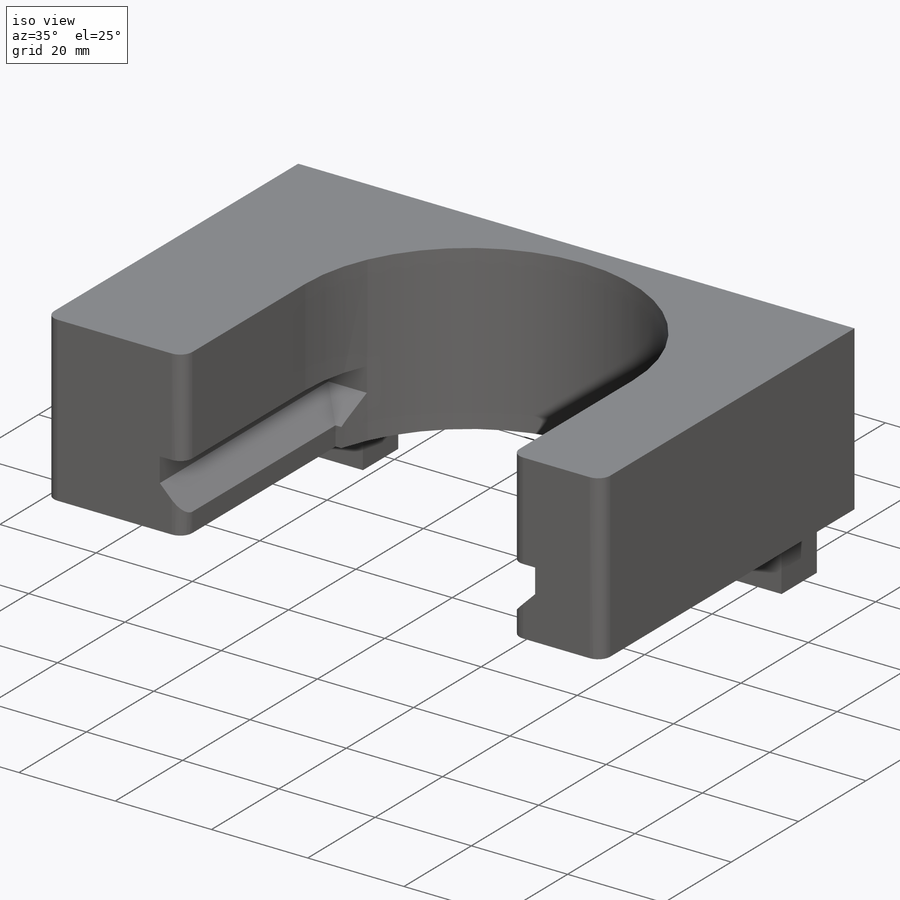
[diagram: iso view]
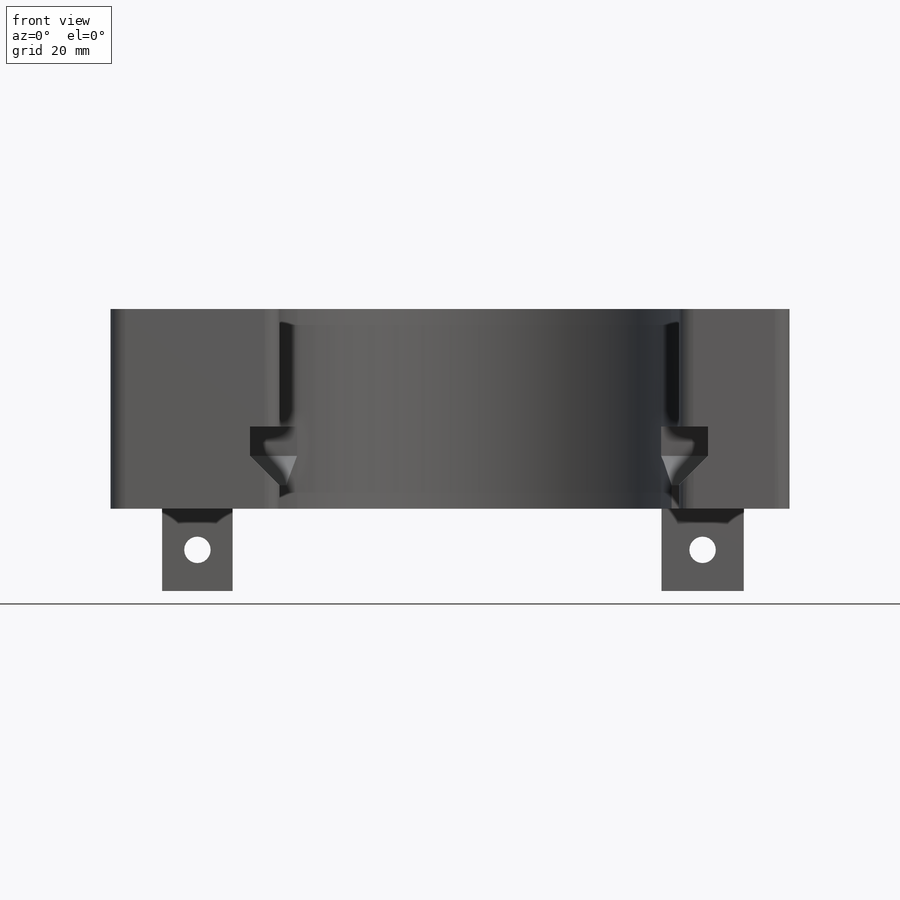
[diagram: front view]
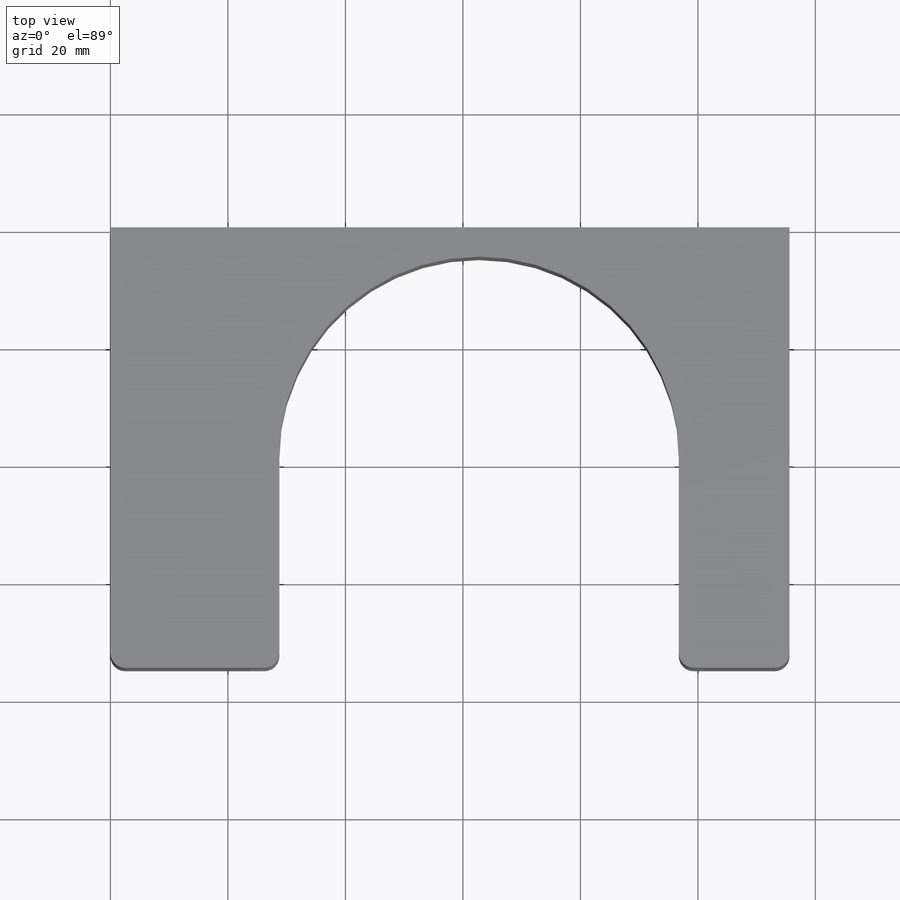
[diagram: top view]
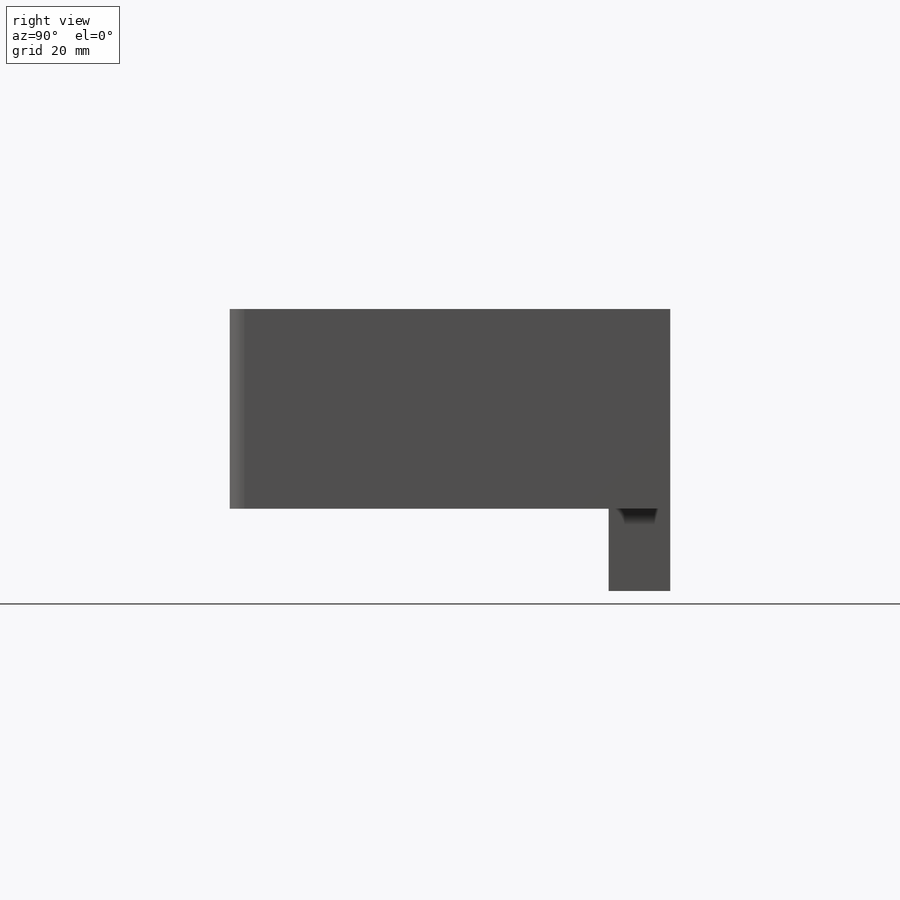
[diagram: right view]
SOLIDWORKS PART (.sldprt)
format: sldprt  version: not decoded by parser v0  size: 315,904 bytes
history: native  units: mm
features: sketch x5, extrude x3, cut_extrude x2, material x1, chamfer x1 (+11 scaffold rows collapsed)
feature tree (23):
  scaffold x11  (default folders/planes/origin — collapsed)
  material  "Material <not specified>"
  sketch  "Sketch2"  dims[c1.D1=5.0mm c1.D2=5.0mm c1.D3=3.0mm c1.D5=34.0mm c1.D6=35.0mm c2.D3=115.6mm c2.D4=75.0mm c2.D6=62.75mm c2.D7=52.85mm c2.D8=5.0mm]
  extrude  "Boss-Extrude2"  Depth=34mm
  sketch  "Sketch10"  dims[c1.D1=5.0mm c1.D2=5.0mm c1.D6=5.0mm c2.D1=7.0mm c2.D2=7.0mm c2.D3=3.0mm c2.D4=7.0mm c3.D2=7.0mm c3.D4=7.0mm c3.D3=4.0mm c3.D1=5.0mm c4.D4=~3.55513mm c5.D4=45.0deg c5.D5=1.0mm c5.D2=10.0mm c6.D5=6.0mm c6.D1=5.0mm c6.D2=10.0mm c6.D3=4.0mm c6.D4=78.0mm c7.D3=4.0mm]
  cut_extrude  "Cut-Extrude3"  Depth=50mm
  sketch  "Sketch15"  dims[c1.D3=9.5mm c1.D4=5.6mm c1.D1=14.8mm c1.D2=86.0mm c2.D4=14.0mm c2.D5=14.0mm c2.D6=12.0mm c2.D7=14.8mm]
  extrude  "Boss-Extrude11"  Depth=6.5mm
  chamfer  "Chamfer3"  Distance=5mm Angle=45deg
  sketch  "Sketch17"  dims[D1=4.5mm D2=4.2mm]
  extrude  "Boss-Extrude12"  Depth=4mm
  sketch  "Sketch19"
  cut_extrude  "Cut-Extrude6"  [1 undecoded]
decode coverage: 9 of 11 modeling features carry decoded parameters
note: ~ marks probable driven/reference dimensions
note: 1 parameter value undecoded
note: suppression state not decoded; provenance and decode notes live in map.json
